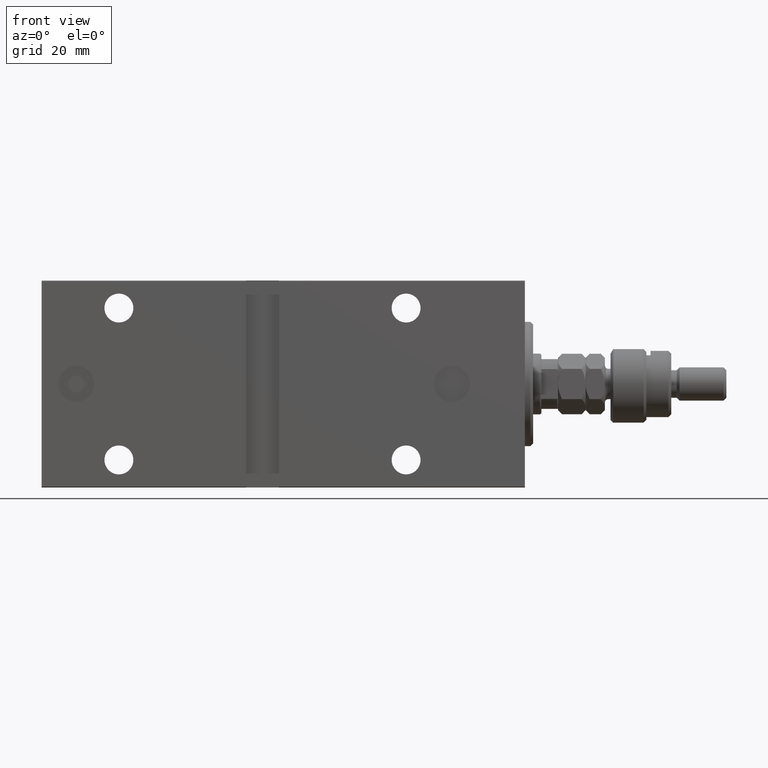
[diagram: clean part render]
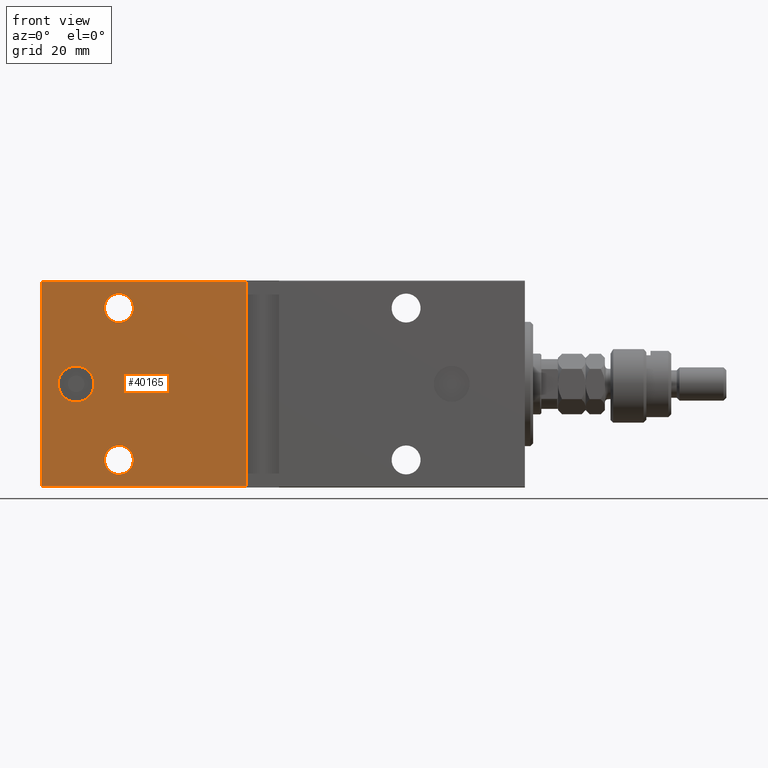
[diagram: same view with one face highlighted and labeled with its STEP entity id]
A machine part, front view. The second image highlights one B-rep face of the part: STEP entity #40165.
In plain terms, the highlighted planar face has unit normal (-0, 1, -0).
Its self-contained STEP definition (entity closure, byte-faithful):
#836 = VECTOR ( 'NONE', #40091, 1000.000000000000000 ) ;
#1214 = EDGE_CURVE ( 'NONE', #30465, #35867, #32705, .T. ) ;
#3458 = DIRECTION ( 'NONE',  ( 0.000000000000000000, -1.000000000000000000, -9.251858538542970348E-17 ) ) ;
#3487 = CIRCLE ( 'NONE', #17478, 5.250000000000000888 ) ;
#3689 = CARTESIAN_POINT ( 'NONE',  ( 175.0000000000000000, 27.50000000000000355, -37.50000000000000711 ) ) ;
#4140 = FACE_BOUND ( 'NONE', #22466, .T. ) ;
#4334 = DIRECTION ( 'NONE',  ( 0.000000000000000000, -1.000000000000000000, -9.251858538542970348E-17 ) ) ;
#4552 = CIRCLE ( 'NONE', #33296, 6.500000000000015099 ) ;
#4789 = LINE ( 'NONE', #19083, #836 ) ;
#5044 = AXIS2_PLACEMENT_3D ( 'NONE', #21527, #11136, #8351 ) ;
#5446 = ORIENTED_EDGE ( 'NONE', *, *, #21215, .T. ) ;
#7096 = AXIS2_PLACEMENT_3D ( 'NONE', #41771, #3458, #41309 ) ;
#7120 = VERTEX_POINT ( 'NONE', #44761 ) ;
#7127 = FACE_BOUND ( 'NONE', #15712, .T. ) ;
#7582 = FACE_BOUND ( 'NONE', #32632, .T. ) ;
#8037 = AXIS2_PLACEMENT_3D ( 'NONE', #37919, #34457, #13657 ) ;
#8237 = CARTESIAN_POINT ( 'NONE',  ( 100.9999999999999716, 27.49999999999999645, 37.20000000000007390 ) ) ;
#8351 = DIRECTION ( 'NONE',  ( 0.000000000000000000, 0.000000000000000000, -1.000000000000000000 ) ) ;
#8757 = CARTESIAN_POINT ( 'NONE',  ( 175.0000000000000000, 27.50000000000000355, -37.20000000000003837 ) ) ;
#9016 = VECTOR ( 'NONE', #36152, 1000.000000000000000 ) ;
#9224 = ORIENTED_EDGE ( 'NONE', *, *, #30268, .F. ) ;
#10023 = AXIS2_PLACEMENT_3D ( 'NONE', #29692, #43757, #25755 ) ;
#10111 = DIRECTION ( 'NONE',  ( 1.232595164407830672E-32, 1.000000000000000000, 1.191466783055831837E-16 ) ) ;
#10656 = LINE ( 'NONE', #33913, #23650 ) ;
#11136 = DIRECTION ( 'NONE',  ( 0.000000000000000000, -1.000000000000000000, -9.251858538542970348E-17 ) ) ;
#11791 = VECTOR ( 'NONE', #13599, 1000.000000000000000 ) ;
#13202 = VERTEX_POINT ( 'NONE', #45588 ) ;
#13599 = DIRECTION ( 'NONE',  ( 0.000000000000000000, -9.251858538542970348E-17, 1.000000000000000000 ) ) ;
#13657 = DIRECTION ( 'NONE',  ( 0.000000000000000000, 0.000000000000000000, -1.000000000000000000 ) ) ;
#14753 = CARTESIAN_POINT ( 'NONE',  ( 146.9999999999999716, 27.50000000000000355, -32.75000000000000711 ) ) ;
#14969 = CARTESIAN_POINT ( 'NONE',  ( 162.4999999999999716, 27.50000000000000000, -6.500000000000012434 ) ) ;
#15307 = EDGE_CURVE ( 'NONE', #40111, #7120, #44695, .T. ) ;
#15494 = CARTESIAN_POINT ( 'NONE',  ( 175.0000000000000000, 27.49999999999999645, 37.20000000000006679 ) ) ;
#15712 = EDGE_LOOP ( 'NONE', ( #9224, #38931 ) ) ;
#17315 = VERTEX_POINT ( 'NONE', #27876 ) ;
#17478 = AXIS2_PLACEMENT_3D ( 'NONE', #42868, #4334, #25326 ) ;
#17755 = DIRECTION ( 'NONE',  ( 0.000000000000000000, -1.000000000000000000, -9.251858538542970348E-17 ) ) ;
#18254 = EDGE_CURVE ( 'NONE', #17315, #42391, #3487, .T. ) ;
#18655 = ORIENTED_EDGE ( 'NONE', *, *, #32031, .T. ) ;
#19083 = CARTESIAN_POINT ( 'NONE',  ( 175.0000000000000000, 27.50000000000000355, -37.20000000000003837 ) ) ;
#21213 = FACE_OUTER_BOUND ( 'NONE', #30756, .T. ) ;
#21215 = EDGE_CURVE ( 'NONE', #13202, #24931, #24906, .T. ) ;
#21527 = CARTESIAN_POINT ( 'NONE',  ( 147.0000000000000000, 27.49999999999999645, 27.50000000000000000 ) ) ;
#22466 = EDGE_LOOP ( 'NONE', ( #25391, #23913 ) ) ;
#22826 = DIRECTION ( 'NONE',  ( 1.000000000000000000, 0.000000000000000000, 0.000000000000000000 ) ) ;
#22990 = VERTEX_POINT ( 'NONE', #8757 ) ;
#23650 = VECTOR ( 'NONE', #22826, 1000.000000000000000 ) ;
#23913 = ORIENTED_EDGE ( 'NONE', *, *, #24563, .T. ) ;
#24563 = EDGE_CURVE ( 'NONE', #42391, #17315, #33156, .T. ) ;
#24906 = CIRCLE ( 'NONE', #5044, 5.250000000000004441 ) ;
#24931 = VERTEX_POINT ( 'NONE', #32035 ) ;
#25065 = AXIS2_PLACEMENT_3D ( 'NONE', #3689, #17755, #28380 ) ;
#25326 = DIRECTION ( 'NONE',  ( 0.000000000000000000, 0.000000000000000000, -1.000000000000000000 ) ) ;
#25391 = ORIENTED_EDGE ( 'NONE', *, *, #18254, .T. ) ;
#25532 = CIRCLE ( 'NONE', #7096, 5.250000000000004441 ) ;
#25755 = DIRECTION ( 'NONE',  ( 0.000000000000000000, 0.000000000000000000, 1.000000000000000000 ) ) ;
#27662 = CARTESIAN_POINT ( 'NONE',  ( 162.4999999999999716, 27.50000000000000000, 2.544261098099316809E-15 ) ) ;
#27696 = CARTESIAN_POINT ( 'NONE',  ( 175.0000000000000000, 27.50000000000000355, -37.50000000000000711 ) ) ;
#27876 = CARTESIAN_POINT ( 'NONE',  ( 146.9999999999999716, 27.50000000000000355, -22.25000000000000355 ) ) ;
#28380 = DIRECTION ( 'NONE',  ( 0.000000000000000000, 9.251858538542970348E-17, -1.000000000000000000 ) ) ;
#29527 = EDGE_CURVE ( 'NONE', #22990, #35867, #4789, .T. ) ;
#29692 = CARTESIAN_POINT ( 'NONE',  ( 162.4999999999999716, 27.50000000000000000, 2.544261098099316809E-15 ) ) ;
#29872 = ORIENTED_EDGE ( 'NONE', *, *, #1214, .F. ) ;
#30268 = EDGE_CURVE ( 'NONE', #7120, #40111, #4552, .T. ) ;
#30465 = VERTEX_POINT ( 'NONE', #8237 ) ;
#30756 = EDGE_LOOP ( 'NONE', ( #38154, #33998, #29872, #38464 ) ) ;
#32031 = EDGE_CURVE ( 'NONE', #24931, #13202, #25532, .T. ) ;
#32035 = CARTESIAN_POINT ( 'NONE',  ( 147.0000000000000000, 27.49999999999999645, 32.75000000000000000 ) ) ;
#32632 = EDGE_LOOP ( 'NONE', ( #18655, #5446 ) ) ;
#32705 = LINE ( 'NONE', #42393, #9016 ) ;
#33156 = CIRCLE ( 'NONE', #8037, 5.250000000000000888 ) ;
#33296 = AXIS2_PLACEMENT_3D ( 'NONE', #27662, #10111, #44967 ) ;
#33842 = VERTEX_POINT ( 'NONE', #15494 ) ;
#33913 = CARTESIAN_POINT ( 'NONE',  ( 175.0000000000000000, 27.49999999999999645, 37.20000000000006679 ) ) ;
#33998 = ORIENTED_EDGE ( 'NONE', *, *, #29527, .T. ) ;
#34457 = DIRECTION ( 'NONE',  ( 0.000000000000000000, -1.000000000000000000, -9.251858538542970348E-17 ) ) ;
#35305 = PLANE ( 'NONE',  #25065 ) ;
#35867 = VERTEX_POINT ( 'NONE', #44361 ) ;
#36152 = DIRECTION ( 'NONE',  ( 1.850371707708591851E-16, 9.251858538542959255E-17, -1.000000000000000000 ) ) ;
#37919 = CARTESIAN_POINT ( 'NONE',  ( 146.9999999999999716, 27.50000000000000355, -27.50000000000000711 ) ) ;
#38154 = ORIENTED_EDGE ( 'NONE', *, *, #40060, .F. ) ;
#38464 = ORIENTED_EDGE ( 'NONE', *, *, #41237, .T. ) ;
#38774 = LINE ( 'NONE', #27696, #11791 ) ;
#38931 = ORIENTED_EDGE ( 'NONE', *, *, #15307, .F. ) ;
#40060 = EDGE_CURVE ( 'NONE', #22990, #33842, #38774, .T. ) ;
#40091 = DIRECTION ( 'NONE',  ( -1.000000000000000000, 0.000000000000000000, 0.000000000000000000 ) ) ;
#40111 = VERTEX_POINT ( 'NONE', #14969 ) ;
#40165 = ADVANCED_FACE ( 'NONE', ( #7127, #4140, #7582, #21213 ), #35305, .F. ) ;
#41237 = EDGE_CURVE ( 'NONE', #30465, #33842, #10656, .T. ) ;
#41309 = DIRECTION ( 'NONE',  ( 0.000000000000000000, 0.000000000000000000, -1.000000000000000000 ) ) ;
#41771 = CARTESIAN_POINT ( 'NONE',  ( 147.0000000000000000, 27.49999999999999645, 27.50000000000000000 ) ) ;
#42391 = VERTEX_POINT ( 'NONE', #14753 ) ;
#42393 = CARTESIAN_POINT ( 'NONE',  ( 100.9999999999999716, 27.50000000000000355, -37.50000000000008527 ) ) ;
#42868 = CARTESIAN_POINT ( 'NONE',  ( 146.9999999999999716, 27.50000000000000355, -27.50000000000000711 ) ) ;
#43757 = DIRECTION ( 'NONE',  ( 1.232595164407830672E-32, 1.000000000000000000, 1.191466783055831837E-16 ) ) ;
#44361 = CARTESIAN_POINT ( 'NONE',  ( 100.9999999999999716, 27.50000000000000355, -37.20000000000003837 ) ) ;
#44695 = CIRCLE ( 'NONE', #10023, 6.500000000000015099 ) ;
#44761 = CARTESIAN_POINT ( 'NONE',  ( 162.4999999999999716, 27.50000000000000000, 6.500000000000017764 ) ) ;
#44967 = DIRECTION ( 'NONE',  ( 0.000000000000000000, 0.000000000000000000, 1.000000000000000000 ) ) ;
#45588 = CARTESIAN_POINT ( 'NONE',  ( 147.0000000000000000, 27.49999999999999645, 22.24999999999999645 ) ) ;